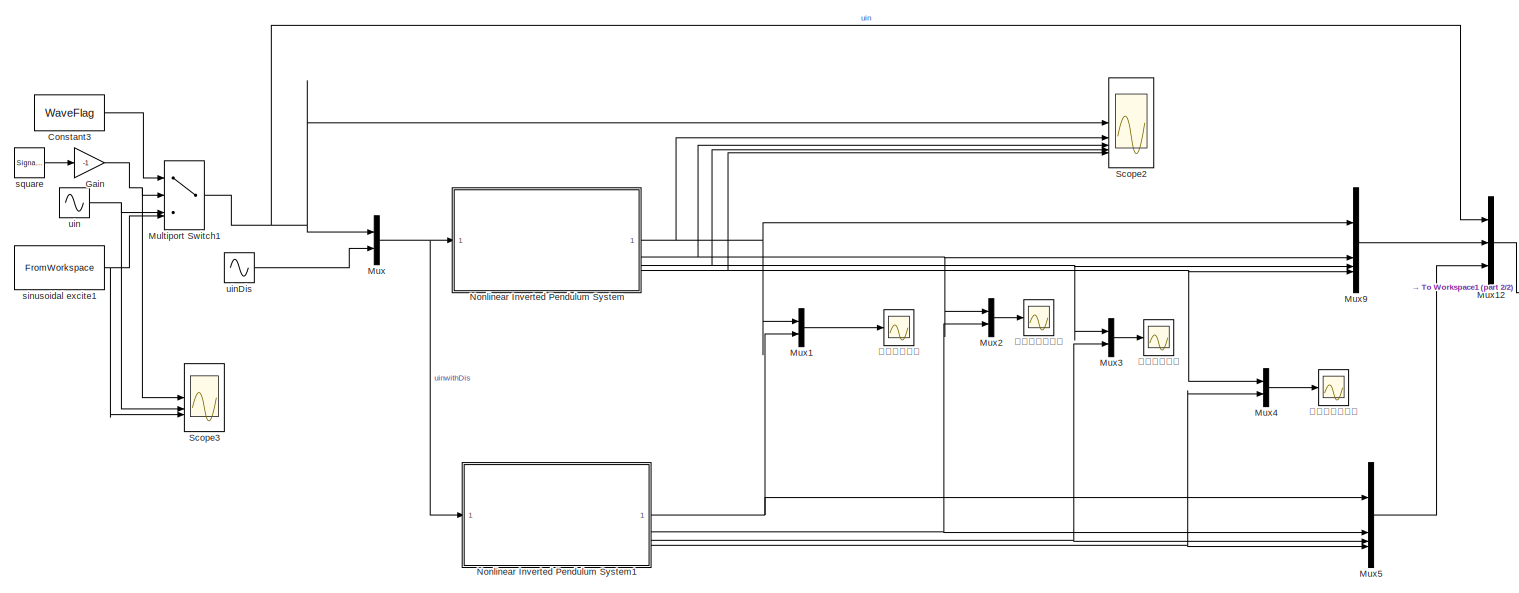
[diagram: root canvas - part 1/2, most of the canvas]
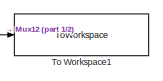
[diagram: root canvas - part 2/2, middle right region]
MODEL slx_b8f916b503bc
KIND model
CONFIG AbsTol = 1e-6
CONFIG EnableMultiTasking = on
CONFIG FixedStep = 0.001
CONFIG MaxStep = auto
CONFIG MinStep = auto
CONFIG RelTol = 1e-6
CONFIG SampleTimeConstraint = Unconstrained
CONFIG SolverName = ode15s
CONFIG StartTime = 0.0
CONFIG StopTime = 10
BLOCK [Constant] Constant3
  Value = WaveFlag
BLOCK [Gain] Gain
  Gain = -1
BLOCK [MultiPortSwitch] Multiport Switch1
  InputSameDT = off
  SaturateOnIntegerOverflow = off
BLOCK [Mux] Mux
  DisplayOption = bar
  Inputs = 2
BLOCK [Mux] Mux1
  DisplayOption = bar
  Inputs = 2
BLOCK [Mux] Mux12
  DisplayOption = bar
  Inputs = 3
BLOCK [Mux] Mux2
  DisplayOption = bar
  Inputs = 2
BLOCK [Mux] Mux3
  DisplayOption = bar
  Inputs = 2
BLOCK [Mux] Mux4
  DisplayOption = bar
  Inputs = 2
BLOCK [Mux] Mux5
  DisplayOption = bar
BLOCK [Mux] Mux9
  DisplayOption = bar
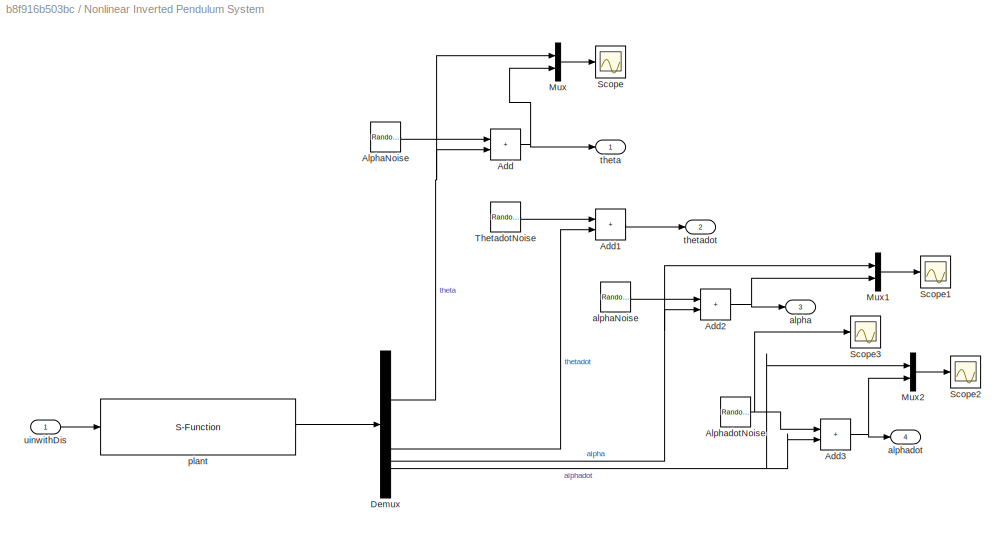
BLOCK [SubSystem] Nonlinear Inverted Pendulum System
BLOCK [Sum] Nonlinear Inverted Pendulum System/Add
  IconShape = rectangular
BLOCK [Sum] Nonlinear Inverted Pendulum System/Add1
  IconShape = rectangular
BLOCK [Sum] Nonlinear Inverted Pendulum System/Add2
  IconShape = rectangular
BLOCK [Sum] Nonlinear Inverted Pendulum System/Add3
  IconShape = rectangular
BLOCK [RandomNumber] Nonlinear Inverted Pendulum System/AlphaNoise
  Mean = NoisePara(1,1)
  SampleTime = NoisePara(1,4)
  Seed = NoisePara(1,3)
  Variance = NoisePara(1,2)
BLOCK [RandomNumber] Nonlinear Inverted Pendulum System/AlphadotNoise
  Mean = NoisePara(4,1)
  SampleTime = NoisePara(4,4)
  Seed = NoisePara(4,3)
  Variance = NoisePara(4,2)
BLOCK [Demux] Nonlinear Inverted Pendulum System/Demux
BLOCK [Mux] Nonlinear Inverted Pendulum System/Mux
  DisplayOption = bar
  Inputs = 2
BLOCK [Mux] Nonlinear Inverted Pendulum System/Mux1
  DisplayOption = bar
  Inputs = 2
BLOCK [Mux] Nonlinear Inverted Pendulum System/Mux2
  DisplayOption = bar
  Inputs = 2
BLOCK [Scope] Nonlinear Inverted Pendulum System/Scope
  ActiveDisplayYMaximum = 49.39689
  ActiveDisplayYMinimum = -47.25618
  DataLoggingVariableName = ScopeData1
  Floating = off
  GraphicalSettings = {"GraphicalSettings":{"LegacySettings":true,"Style":{"Style":{"AxesColor":"[0 0 0]","ChannelNames":[""],"ColorOrder":"[1 1 0.0666666666666667;0.0745098039215686 0.623529411764706 1;1 0.411764705882353 0.16078431372549;0.392156862745098 0.831372549019608 0.0745098039215686;0.717647058823529 0.274509803921569 1;0.0588235294117647 1 1;1 0.0745098039215686 0.650980392156863]","CurrentConfiguration":"e...<+346ch>  <repeated x3 — deduplicated; at blocks: Scope, Scope1, Scope2>
  MultipleDisplayCache = [{"MaxYLimMag":49.39689,"MaxYLimReal":49.39689,"MinYLimMag":0,"MinYLimReal":-47.25618,"PlotAsMagnitudePhase":false,"ShowGrid":true,"ShowLegend":false,"Title":"%<SignalLabel>","YLabel":""}]
  NumInputPorts = 1
  WasSavedAsWebScope = on
BLOCK [Scope] Nonlinear Inverted Pendulum System/Scope1
  ActiveDisplayYMaximum = 130.5113
  ActiveDisplayYMinimum = -22.29261
  DataLoggingVariableName = ScopeData2
  Floating = off
  MultipleDisplayCache = [{"MaxYLimMag":130.5113,"MaxYLimReal":130.5113,"MinYLimMag":0,"MinYLimReal":-22.29261,"PlotAsMagnitudePhase":false,"ShowGrid":true,"ShowLegend":false,"Title":"%<SignalLabel>","YLabel":""}]
  NumInputPorts = 1
  WasSavedAsWebScope = on
BLOCK [Scope] Nonlinear Inverted Pendulum System/Scope2
  ActiveDisplayYMaximum = 281.82439
  ActiveDisplayYMinimum = -281.90197
  DataLoggingVariableName = ScopeData3
  Floating = off
  MultipleDisplayCache = [{"MaxYLimMag":281.90197,"MaxYLimReal":281.82439,"MinYLimMag":0,"MinYLimReal":-281.90197,"PlotAsMagnitudePhase":false,"ShowGrid":true,"ShowLegend":false,"Title":"%<SignalLabel>","YLabel":""}]
  NumInputPorts = 1
  WasSavedAsWebScope = on
BLOCK [Scope] Nonlinear Inverted Pendulum System/Scope3
  ActiveDisplayYMaximum = 20.14516
  ActiveDisplayYMinimum = -19.15922
  DataLoggingVariableName = ScopeData4
  Floating = off
  GraphicalSettings = {"GraphicalSettings":{"LegacySettings":true,"Style":{"Style":{"AxesColor":"[0 0 0]","ChannelNames":[""],"ColorOrder":"[1 1 0.0666666666666667;0.0745098039215686 0.623529411764706 1;1 0.411764705882353 0.16078431372549;0.392156862745098 0.831372549019608 0.0745098039215686;0.717647058823529 0.274509803921569 1;0.0588235294117647 1 1;1 0.0745098039215686 0.650980392156863]","CurrentConfiguration":"e...<+343ch>
  MultipleDisplayCache = [{"MaxYLimMag":20.14516,"MaxYLimReal":20.14516,"MinYLimMag":0,"MinYLimReal":-19.15922,"PlotAsMagnitudePhase":false,"ShowGrid":true,"ShowLegend":false,"Title":"%<SignalLabel>","YLabel":""}]
  NumInputPorts = 1
  WasSavedAsWebScope = on
BLOCK [RandomNumber] Nonlinear Inverted Pendulum System/ThetadotNoise
  Mean = NoisePara(2,1)
  SampleTime = NoisePara(2,4)
  Seed = NoisePara(2,3)
  Variance = NoisePara(2,2)
BLOCK [Outport] Nonlinear Inverted Pendulum System/alpha
  Port = 3
BLOCK [RandomNumber] Nonlinear Inverted Pendulum System/alphaNoise
  Mean = NoisePara(3,1)
  SampleTime = NoisePara(3,4)
  Seed = NoisePara(3,3)
  Variance = NoisePara(3,2)
BLOCK [Outport] Nonlinear Inverted Pendulum System/alphadot
  Port = 4
BLOCK [S-Function] Nonlinear Inverted Pendulum System/plant
  EnableBusSupport = off
  FunctionName = MIC_sfun_Inverted_Pendulumn_Dynamics
  Parameters = InitX,TFPara,ModelSelFlag
  SFcnIsStateOwnerBlock = off
  SFunctionDeploymentMode = off
BLOCK [Outport] Nonlinear Inverted Pendulum System/theta
BLOCK [Outport] Nonlinear Inverted Pendulum System/thetadot
  Port = 2
BLOCK [Inport] Nonlinear Inverted Pendulum System/uinwithDis
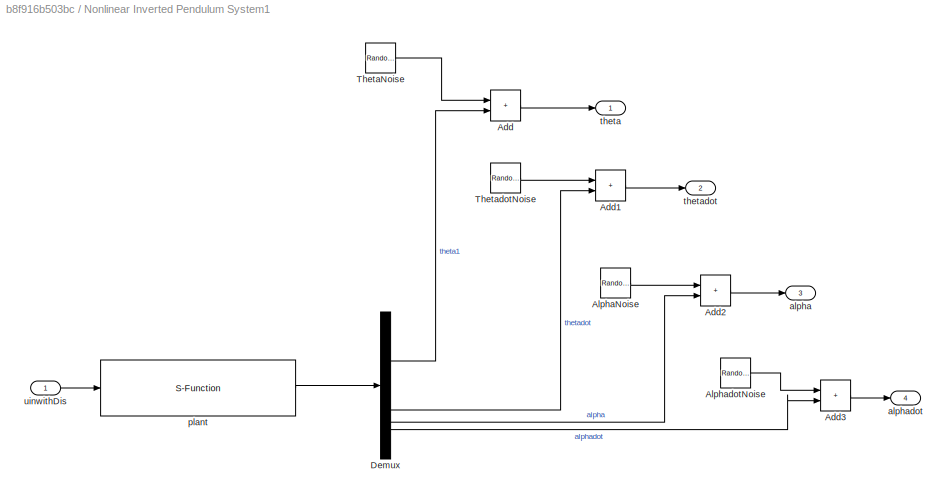
BLOCK [SubSystem] Nonlinear Inverted Pendulum System1
BLOCK [Sum] Nonlinear Inverted Pendulum System1/Add
  IconShape = rectangular
BLOCK [Sum] Nonlinear Inverted Pendulum System1/Add1
  IconShape = rectangular
BLOCK [Sum] Nonlinear Inverted Pendulum System1/Add2
  IconShape = rectangular
BLOCK [Sum] Nonlinear Inverted Pendulum System1/Add3
  IconShape = rectangular
BLOCK [RandomNumber] Nonlinear Inverted Pendulum System1/AlphaNoise
  Mean = NoisePara(3,1)
  SampleTime = NoisePara(3,4)
  Seed = NoisePara(3,3)
  Variance = NoisePara(3,2)
BLOCK [RandomNumber] Nonlinear Inverted Pendulum System1/AlphadotNoise
  Mean = NoisePara(4,1)
  SampleTime = NoisePara(4,4)
  Seed = NoisePara(4,3)
  Variance = NoisePara(4,2)
BLOCK [Demux] Nonlinear Inverted Pendulum System1/Demux
BLOCK [RandomNumber] Nonlinear Inverted Pendulum System1/ThetaNoise
  Mean = NoisePara(1,1)
  SampleTime = NoisePara(1,4)
  Seed = NoisePara(1,3)
  Variance = NoisePara(1,2)
BLOCK [RandomNumber] Nonlinear Inverted Pendulum System1/ThetadotNoise
  Mean = NoisePara(2,1)
  SampleTime = NoisePara(2,4)
  Seed = NoisePara(2,3)
  Variance = NoisePara(2,2)
BLOCK [Outport] Nonlinear Inverted Pendulum System1/alpha
  Port = 3
BLOCK [Outport] Nonlinear Inverted Pendulum System1/alphadot
  Port = 4
BLOCK [S-Function] Nonlinear Inverted Pendulum System1/plant
  EnableBusSupport = off
  FunctionName = MIC_sfun_Inverted_Pendulumn_Dynamics
  Parameters = InitX,TFPara,ModelSelFlag
  SFcnIsStateOwnerBlock = off
  SFunctionDeploymentMode = off
BLOCK [Outport] Nonlinear Inverted Pendulum System1/theta
BLOCK [Outport] Nonlinear Inverted Pendulum System1/thetadot
  Port = 2
BLOCK [Inport] Nonlinear Inverted Pendulum System1/uinwithDis
BLOCK [Scope] Scope2
  ActiveDisplayYMaximum = 3461.92632
  ActiveDisplayYMinimum = -386.80995
  AxesScaling = Auto
  DataLogging = on
  DataLoggingDecimateData = on
  DataLoggingDecimation = 1
  DataLoggingSaveFormat = Structure
  DataLoggingVariableName = ScopeData1
  DisplayFullPath = on
  Floating = off
  GraphicalSettings = {"GraphicalSettings":{"LegacySettings":true,"Style":{"AxesScalingProperties":{"AxesScaling":"Auto","ScaleAxesLimitsAtStop":false},"Style":{"AxesColor":"[1 1 1]","BackgroundColor":"[1 1 1]","ChannelNames":["","","","","",""],"ColorOrder":"[0 0.447058823529412 0.741176470588235;0.850980392156863 0.325490196078431 0.0980392156862745;0.929411764705882 0.694117647058824 0.125490196078431;0.494117647058...<+1171ch>
  LayoutDimensionsString = [2 3]
  MaximizeAxes = Auto
  MultipleDisplayCache = [{"MaxYLimMag":10,"MaxYLimReal":3461.92632,"MinYLimMag":0,"MinYLimReal":-386.80995,"PlotAsMagnitudePhase":false,"ShowGrid":true,"ShowLegend":false,"Title":"%<SignalLabel>","YLabel":""},{"MaxYLimMag":10,"MaxYLimReal":3461.92632,"MinYLimMag":0,"MinYLimReal":-386.80995,"PlotAsMagnitudePhase":false,"ShowGrid":true,"ShowLegend":false,"Title":"%<SignalLabel>","YLabel":""},{"MaxYLimMag":10,"MaxYLimReal":...<+705ch>
  NumInputPorts = 5
  ScopeFrameLocation = window
  ShowTimeAxisLabel = on
  WasSavedAsWebScope = on
  WindowPosition = [1.000000,-49.000000,1680.000000,933.000000,]
BLOCK [Scope] Scope3
  ActiveDisplayYMaximum = 0.11
  ActiveDisplayYMinimum = 0.09
  DataLogging = on
  DataLoggingDecimateData = on
  DataLoggingDecimation = 1
  DataLoggingSaveFormat = Structure
  DataLoggingVariableName = ScopeData2
  Floating = off
  GraphicalSettings = {"GraphicalSettings":{"LegacySettings":true,"Style":{"AxesScalingProperties":{"ScaleAxesLimitsAtStop":false},"Style":{"AxesColor":"[1 1 1]","BackgroundColor":"[1 1 1]","ChannelNames":["",""],"ColorOrder":"[0 0.447058823529412 0.741176470588235;0.850980392156863 0.325490196078431 0.0980392156862745;0.929411764705882 0.694117647058824 0.125490196078431;0.494117647058824 0.184313725490196 0.556862745...<+1483ch>
  LayoutDimensionsString = [2 1]
  MultipleDisplayCache = [{"MaxYLimMag":0.11,"MaxYLimReal":0.11,"MinYLimMag":0.09,"MinYLimReal":0.09,"PlotAsMagnitudePhase":false,"ShowGrid":true,"ShowLegend":false,"Title":"%<SignalLabel>","YLabel":""},{"MaxYLimMag":10,"MaxYLimReal":11.69507,"MinYLimMag":0,"MinYLimReal":-12.41056,"PlotAsMagnitudePhase":false,"ShowGrid":true,"ShowLegend":false,"Title":"%<SignalLabel>","YLabel":""}]
  NumInputPorts = 3
  WasSavedAsWebScope = on
BLOCK [ToWorkspace] To Workspace1
  FixptAsFi = on
  MaxDataPoints = inf
  SampleTime = IdentTs
  SaveFormat = Structure With Time
  VariableName = ResponseData
BLOCK [FromWorkspace] sinusoidal excite1
  SampleTime = IdentTs
  VariableName = IdentTrajData
BLOCK [SignalGenerator] square
  Amplitude = UinSquare(1)
  Frequency = UinSquare(2)
  Units = rad/sec
  WaveForm = square
BLOCK [Sin] uin
  Amplitude = UinSin(1)
  Bias = UinSin(3)
  Frequency = UinSin(2)
  SampleTime = 0
BLOCK [Sin] uinDis
  Amplitude = UinDis(1)
  Bias = UinDis(3)
  Frequency = UinDis(2)
  SampleTime = 0
BLOCK [Scope] 摆杆角度比较
  ActiveDisplayYMaximum = 3461.48007
  ActiveDisplayYMinimum = -386.76037
  DataLogging = on
  DataLoggingDecimateData = on
  DataLoggingDecimation = 1
  DataLoggingSaveFormat = Structure With Time
  DataLoggingVariableName = ScopeData10
  Floating = off
  GraphicalSettings = {"GraphicalSettings":{"LegacySettings":true,"Style":{"AxesScalingProperties":{"ScaleAxesLimitsAtStop":false},"Style":{"AxesColor":"[0 0 0]","ChannelNames":[""],"ColorOrder":"[1 1 0.0666666666666667;0.0745098039215686 0.623529411764706 1;1 0.411764705882353 0.16078431372549;0.392156862745098 0.831372549019608 0.0745098039215686;0.717647058823529 0.274509803921569 1;0.0588235294117647 1 1;1 0.074509...<+402ch>
  MultipleDisplayCache = [{"MaxYLimMag":3461.48007,"MaxYLimReal":3461.48007,"MinYLimMag":0,"MinYLimReal":-386.76037,"PlotAsMagnitudePhase":false,"ShowGrid":true,"ShowLegend":false,"Title":"%<SignalLabel>","YLabel":""}]
  NumInputPorts = 1
  WasSavedAsWebScope = on
BLOCK [Scope] 摆杆角速度比较
  ActiveDisplayYMaximum = 271.97435
  ActiveDisplayYMinimum = -271.96904
  DataLogging = on
  DataLoggingDecimateData = on
  DataLoggingDecimation = 1
  DataLoggingSaveFormat = Structure With Time
  DataLoggingVariableName = ScopeData11
  Floating = off
  GraphicalSettings = {"GraphicalSettings":{"LegacySettings":true,"Style":{"AxesScalingProperties":{"ScaleAxesLimitsAtStop":false},"Style":{"AxesColor":"[0 0 0]","ChannelNames":[""],"ColorOrder":"[1 1 0.0666666666666667;0.0745098039215686 0.623529411764706 1;1 0.411764705882353 0.16078431372549;0.392156862745098 0.831372549019608 0.0745098039215686;0.717647058823529 0.274509803921569 1;0.0588235294117647 1 1;1 0.074509...<+813ch>
  MultipleDisplayCache = [{"MaxYLimMag":271.97435,"MaxYLimReal":271.97435,"MinYLimMag":0,"MinYLimReal":-271.96904,"PlotAsMagnitudePhase":false,"ShowGrid":true,"ShowLegend":false,"Title":"%<SignalLabel>","YLabel":""}]
  NumInputPorts = 1
  WasSavedAsWebScope = on
BLOCK [Scope] 摆臂角度比较
  ActiveDisplayYMaximum = 6.37046
  ActiveDisplayYMinimum = -6.05868
  DataLogging = on
  DataLoggingDecimateData = on
  DataLoggingDecimation = 1
  DataLoggingSaveFormat = Structure With Time
  DataLoggingVariableName = ScopeData3
  Floating = off
  GraphicalSettings = {"GraphicalSettings":{"LegacySettings":true,"Style":{"AxesScalingProperties":{"ScaleAxesLimitsAtStop":false},"Style":{"AxesColor":"[0 0 0]","ChannelNames":[""],"ColorOrder":"[1 1 0.0666666666666667;0.0745098039215686 0.623529411764706 1;1 0.411764705882353 0.16078431372549;0.392156862745098 0.831372549019608 0.0745098039215686;0.717647058823529 0.274509803921569 1;0.0588235294117647 1 1;1 0.074509...<+427ch>
  MultipleDisplayCache = [{"MaxYLimMag":6.37046,"MaxYLimReal":6.37046,"MinYLimMag":0,"MinYLimReal":-6.05868,"PlotAsMagnitudePhase":false,"ShowGrid":true,"ShowLegend":false,"Title":"%<SignalLabel>","YLabel":""}]
  NumInputPorts = 1
  WasSavedAsWebScope = on
BLOCK [Scope] 摆臂角速度比较
  ActiveDisplayYMaximum = 61.20032
  ActiveDisplayYMinimum = -56.65501
  DataLogging = on
  DataLoggingDecimateData = on
  DataLoggingDecimation = 1
  DataLoggingSaveFormat = Structure With Time
  DataLoggingVariableName = ScopeData9
  Floating = off
  GraphicalSettings = {"GraphicalSettings":{"LegacySettings":true,"Style":{"AxesScalingProperties":{"ScaleAxesLimitsAtStop":false},"Style":{"AxesColor":"[0 0 0]","ChannelNames":[""],"ColorOrder":"[1 1 0.0666666666666667;0.0745098039215686 0.623529411764706 1;1 0.411764705882353 0.16078431372549;0.392156862745098 0.831372549019608 0.0745098039215686;0.717647058823529 0.274509803921569 1;0.0588235294117647 1 1;1 0.074509...<+402ch>
  MultipleDisplayCache = [{"MaxYLimMag":61.20032,"MaxYLimReal":61.20032,"MinYLimMag":0,"MinYLimReal":-56.65501,"PlotAsMagnitudePhase":false,"ShowGrid":true,"ShowLegend":false,"Title":"%<SignalLabel>","YLabel":""}]
  NumInputPorts = 1
  WasSavedAsWebScope = on
LINE Constant3:1 -> Multiport Switch1:1
NET Gain:1 -> Multiport Switch1:2, Scope3:1
NET Multiport Switch1:1 -> Mux12:1, Mux:1, Scope2:1
LINE Mux12:1 -> To Workspace1:1
LINE Mux1:1 -> 摆臂角度比较:1
LINE Mux2:1 -> 摆臂角速度比较:1
LINE Mux3:1 -> 摆杆角度比较:1
LINE Mux4:1 -> 摆杆角速度比较:1
LINE Mux5:1 -> Mux12:3
LINE Mux9:1 -> Mux12:2
NET Mux:1 -> Nonlinear Inverted Pendulum System1:1, Nonlinear Inverted Pendulum System:1
LINE Nonlinear Inverted Pendulum System/Add1:1 -> Nonlinear Inverted Pendulum System/thetadot:1
NET Nonlinear Inverted Pendulum System/Add2:1 -> Nonlinear Inverted Pendulum System/Mux1:2, Nonlinear Inverted Pendulum System/alpha:1
NET Nonlinear Inverted Pendulum System/Add3:1 -> Nonlinear Inverted Pendulum System/Mux2:2, Nonlinear Inverted Pendulum System/alphadot:1
NET Nonlinear Inverted Pendulum System/Add:1 -> Nonlinear Inverted Pendulum System/Mux:2, Nonlinear Inverted Pendulum System/theta:1
LINE Nonlinear Inverted Pendulum System/AlphaNoise:1 -> Nonlinear Inverted Pendulum System/Add:1
NET Nonlinear Inverted Pendulum System/AlphadotNoise:1 -> Nonlinear Inverted Pendulum System/Add3:1, Nonlinear Inverted Pendulum System/Scope3:1
NET Nonlinear Inverted Pendulum System/Demux:1 -> Nonlinear Inverted Pendulum System/Add:2, Nonlinear Inverted Pendulum System/Mux:1
LINE Nonlinear Inverted Pendulum System/Demux:2 -> Nonlinear Inverted Pendulum System/Add1:2
NET Nonlinear Inverted Pendulum System/Demux:3 -> Nonlinear Inverted Pendulum System/Add2:2, Nonlinear Inverted Pendulum System/Mux1:1
NET Nonlinear Inverted Pendulum System/Demux:4 -> Nonlinear Inverted Pendulum System/Add3:2, Nonlinear Inverted Pendulum System/Mux2:1
LINE Nonlinear Inverted Pendulum System/Mux1:1 -> Nonlinear Inverted Pendulum System/Scope1:1
LINE Nonlinear Inverted Pendulum System/Mux2:1 -> Nonlinear Inverted Pendulum System/Scope2:1
LINE Nonlinear Inverted Pendulum System/Mux:1 -> Nonlinear Inverted Pendulum System/Scope:1
LINE Nonlinear Inverted Pendulum System/ThetadotNoise:1 -> Nonlinear Inverted Pendulum System/Add1:1
LINE Nonlinear Inverted Pendulum System/alphaNoise:1 -> Nonlinear Inverted Pendulum System/Add2:1
LINE Nonlinear Inverted Pendulum System/plant:1 -> Nonlinear Inverted Pendulum System/Demux:1
LINE Nonlinear Inverted Pendulum System/uinwithDis:1 -> Nonlinear Inverted Pendulum System/plant:1
LINE Nonlinear Inverted Pendulum System1/Add1:1 -> Nonlinear Inverted Pendulum System1/thetadot:1
LINE Nonlinear Inverted Pendulum System1/Add2:1 -> Nonlinear Inverted Pendulum System1/alpha:1
LINE Nonlinear Inverted Pendulum System1/Add3:1 -> Nonlinear Inverted Pendulum System1/alphadot:1
LINE Nonlinear Inverted Pendulum System1/Add:1 -> Nonlinear Inverted Pendulum System1/theta:1
LINE Nonlinear Inverted Pendulum System1/AlphaNoise:1 -> Nonlinear Inverted Pendulum System1/Add2:1
LINE Nonlinear Inverted Pendulum System1/AlphadotNoise:1 -> Nonlinear Inverted Pendulum System1/Add3:1
LINE Nonlinear Inverted Pendulum System1/Demux:1 -> Nonlinear Inverted Pendulum System1/Add:2
LINE Nonlinear Inverted Pendulum System1/Demux:2 -> Nonlinear Inverted Pendulum System1/Add1:2
LINE Nonlinear Inverted Pendulum System1/Demux:3 -> Nonlinear Inverted Pendulum System1/Add2:2
LINE Nonlinear Inverted Pendulum System1/Demux:4 -> Nonlinear Inverted Pendulum System1/Add3:2
LINE Nonlinear Inverted Pendulum System1/ThetaNoise:1 -> Nonlinear Inverted Pendulum System1/Add:1
LINE Nonlinear Inverted Pendulum System1/ThetadotNoise:1 -> Nonlinear Inverted Pendulum System1/Add1:1
LINE Nonlinear Inverted Pendulum System1/plant:1 -> Nonlinear Inverted Pendulum System1/Demux:1
LINE Nonlinear Inverted Pendulum System1/uinwithDis:1 -> Nonlinear Inverted Pendulum System1/plant:1
NET Nonlinear Inverted Pendulum System1:1 -> Mux1:2, Mux5:1
NET Nonlinear Inverted Pendulum System1:2 -> Mux2:2, Mux5:2
NET Nonlinear Inverted Pendulum System1:3 -> Mux3:2, Mux5:3
NET Nonlinear Inverted Pendulum System1:4 -> Mux4:2, Mux5:4
NET Nonlinear Inverted Pendulum System:1 -> Mux1:1, Mux9:1, Scope2:2
NET Nonlinear Inverted Pendulum System:2 -> Mux2:1, Mux9:2, Scope2:3
NET Nonlinear Inverted Pendulum System:3 -> Mux3:1, Mux9:3, Scope2:4
NET Nonlinear Inverted Pendulum System:4 -> Mux4:1, Mux9:4, Scope2:5
NET sinusoidal excite1:1 -> Multiport Switch1:4, Scope3:3
LINE square:1 -> Gain:1
NET uin:1 -> Multiport Switch1:3, Scope3:2
LINE uinDis:1 -> Mux:2
note: NET lines group one-source signal fan-out (src -> all destinations, sorted); 1:1 wires keep LINE
